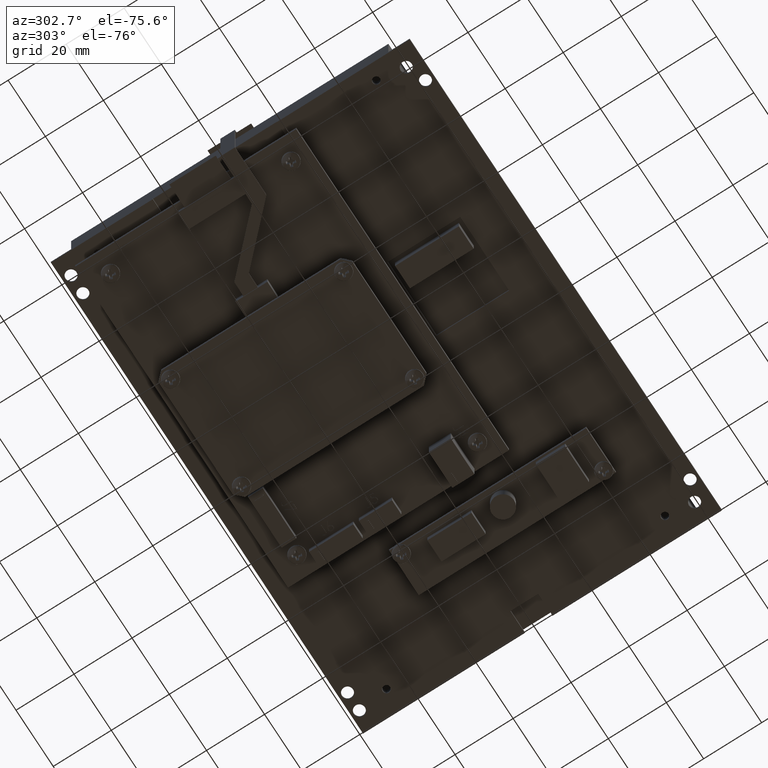
[diagram: clean part render]
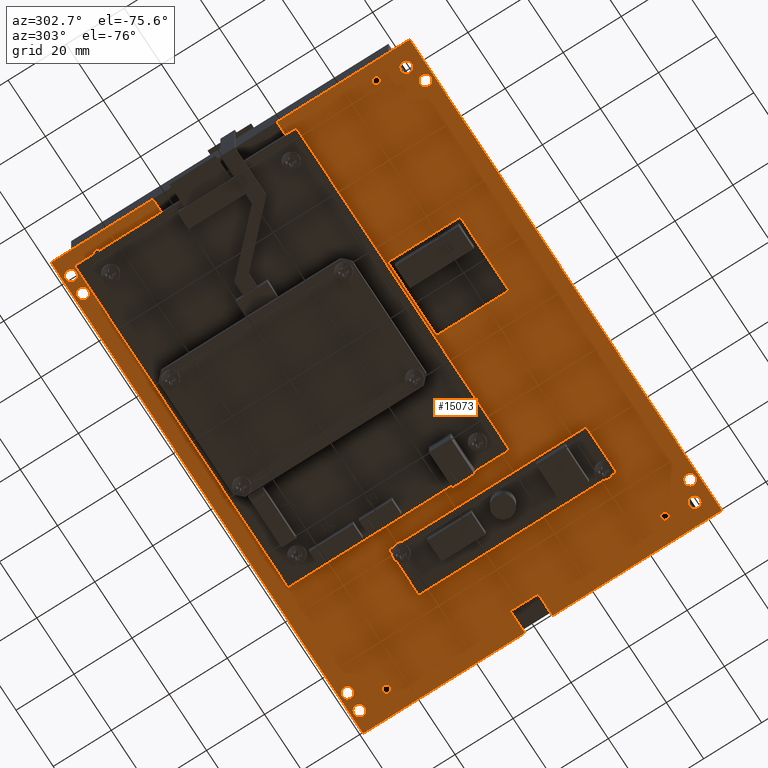
[diagram: same view with one face highlighted and labeled with its STEP entity id]
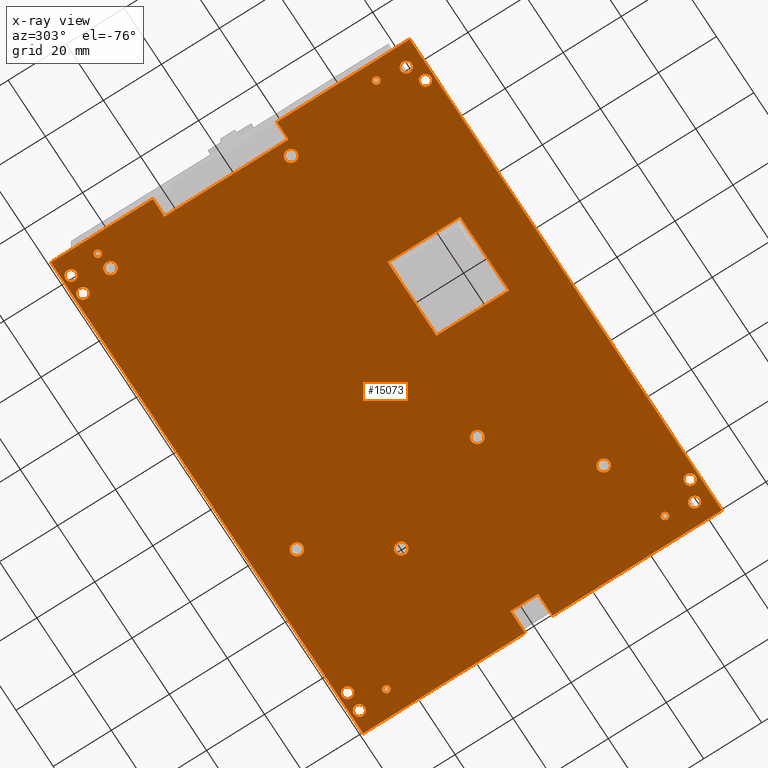
[diagram: x-ray of the same camera — body ghosted, the highlighted face saturated]
A machine part, auxiliary view. The second image highlights one B-rep face of the part: STEP entity #15073.
The next image is the same camera in x-ray: the body ghosted, the highlighted face saturated — about 0% of this face is hidden behind the body in this view.
In plain terms, the highlighted planar face has unit normal (0, 0, -1).
Its self-contained STEP definition (entity closure, byte-faithful):
#4969 = CIRCLE ( 'NONE', #5002, 0.08299999999999963000 ) ;
#5001 = CIRCLE ( 'NONE', #5007, 0.08299999999999990700 ) ;
#5002 = AXIS2_PLACEMENT_3D ( 'NONE', #7333, #7334, #7335 ) ;
#5007 = AXIS2_PLACEMENT_3D ( 'NONE', #7343, #7344, #7345 ) ;
#5008 = CIRCLE ( 'NONE', #5013, 0.08299999999999976800 ) ;
#5013 = AXIS2_PLACEMENT_3D ( 'NONE', #7355, #7356, #7357 ) ;
#5014 = CIRCLE ( 'NONE', #5019, 0.08299999999999949100 ) ;
#5019 = AXIS2_PLACEMENT_3D ( 'NONE', #7367, #7368, #7369 ) ;
#5020 = CIRCLE ( 'NONE', #5025, 0.08299999999999963000 ) ;
#5025 = AXIS2_PLACEMENT_3D ( 'NONE', #7379, #7380, #7381 ) ;
#5026 = CIRCLE ( 'NONE', #5031, 0.08299999999999963000 ) ;
#5031 = AXIS2_PLACEMENT_3D ( 'NONE', #7391, #7392, #7393 ) ;
#5032 = CIRCLE ( 'NONE', #5037, 0.07500000000000015000 ) ;
#5037 = AXIS2_PLACEMENT_3D ( 'NONE', #7403, #7404, #7405 ) ;
#5038 = CIRCLE ( 'NONE', #5043, 0.07500000000000015000 ) ;
#5043 = AXIS2_PLACEMENT_3D ( 'NONE', #7415, #7416, #7417 ) ;
#5044 = CIRCLE ( 'NONE', #5049, 0.07500000000000015000 ) ;
#5049 = AXIS2_PLACEMENT_3D ( 'NONE', #7427, #7428, #7429 ) ;
#5050 = CIRCLE ( 'NONE', #5055, 0.07500000000000015000 ) ;
#5055 = AXIS2_PLACEMENT_3D ( 'NONE', #7439, #7440, #7441 ) ;
#5056 = CIRCLE ( 'NONE', #5061, 0.07500000000000015000 ) ;
#5061 = AXIS2_PLACEMENT_3D ( 'NONE', #7451, #7452, #7453 ) ;
#5062 = CIRCLE ( 'NONE', #5067, 0.07500000000000015000 ) ;
#5067 = AXIS2_PLACEMENT_3D ( 'NONE', #7463, #7464, #7465 ) ;
#5068 = CIRCLE ( 'NONE', #5073, 0.07500000000000015000 ) ;
#5073 = AXIS2_PLACEMENT_3D ( 'NONE', #7475, #7476, #7477 ) ;
#5074 = CIRCLE ( 'NONE', #5079, 0.07500000000000015000 ) ;
#5079 = AXIS2_PLACEMENT_3D ( 'NONE', #7496, #7497, #7498 ) ;
#5080 = CIRCLE ( 'NONE', #5085, 0.04899999999999993900 ) ;
#5085 = AXIS2_PLACEMENT_3D ( 'NONE', #7511, #7512, #7513 ) ;
#5086 = CIRCLE ( 'NONE', #5091, 0.04899999999999993900 ) ;
#5091 = AXIS2_PLACEMENT_3D ( 'NONE', #7523, #7524, #7525 ) ;
#5092 = CIRCLE ( 'NONE', #5097, 0.04899999999999993900 ) ;
#5097 = AXIS2_PLACEMENT_3D ( 'NONE', #7535, #7536, #7537 ) ;
#5098 = CIRCLE ( 'NONE', #5103, 0.04899999999999993900 ) ;
#5103 = AXIS2_PLACEMENT_3D ( 'NONE', #7547, #7548, #7549 ) ;
#5108 = VECTOR ( 'NONE', #7566, 39.37007874015748100 ) ;
#5109 = VECTOR ( 'NONE', #7572, 39.37007874015748100 ) ;
#5115 = VECTOR ( 'NONE', #7584, 39.37007874015748100 ) ;
#7333 = CARTESIAN_POINT ( 'NONE',  ( 2.124999999999999100, -1.585000000000000200, 0.0000000000000000000 ) ) ;
#7334 = DIRECTION ( 'NONE',  ( 0.0000000000000000000, 0.0000000000000000000, 1.000000000000000000 ) ) ;
#7335 = DIRECTION ( 'NONE',  ( 1.000000000000000000, 0.0000000000000000000, 0.0000000000000000000 ) ) ;
#7343 = CARTESIAN_POINT ( 'NONE',  ( 1.699999999999999300, 0.8899999999999997900, 0.0000000000000000000 ) ) ;
#7344 = DIRECTION ( 'NONE',  ( 0.0000000000000000000, 0.0000000000000000000, 1.000000000000000000 ) ) ;
#7345 = DIRECTION ( 'NONE',  ( 1.000000000000000000, 0.0000000000000000000, 0.0000000000000000000 ) ) ;
#7355 = CARTESIAN_POINT ( 'NONE',  ( 1.063999999999999200, -0.5520000000000002700, 0.0000000000000000000 ) ) ;
#7356 = DIRECTION ( 'NONE',  ( 0.0000000000000000000, 0.0000000000000000000, 1.000000000000000000 ) ) ;
#7357 = DIRECTION ( 'NONE',  ( 1.000000000000000000, 0.0000000000000000000, 0.0000000000000000000 ) ) ;
#7367 = CARTESIAN_POINT ( 'NONE',  ( 1.063999999999998700, 1.897999999999999900, 0.0000000000000000000 ) ) ;
#7368 = DIRECTION ( 'NONE',  ( 0.0000000000000000000, 0.0000000000000000000, 1.000000000000000000 ) ) ;
#7369 = DIRECTION ( 'NONE',  ( 1.000000000000000000, 0.0000000000000000000, 0.0000000000000000000 ) ) ;
#7379 = CARTESIAN_POINT ( 'NONE',  ( -2.876000000000000800, -0.5520000000000002700, 0.0000000000000000000 ) ) ;
#7380 = DIRECTION ( 'NONE',  ( 0.0000000000000000000, 0.0000000000000000000, 1.000000000000000000 ) ) ;
#7381 = DIRECTION ( 'NONE',  ( 1.000000000000000000, 0.0000000000000000000, 0.0000000000000000000 ) ) ;
#7391 = CARTESIAN_POINT ( 'NONE',  ( -2.876000000000000800, 1.897999999999999900, 0.0000000000000000000 ) ) ;
#7392 = DIRECTION ( 'NONE',  ( 0.0000000000000000000, 0.0000000000000000000, 1.000000000000000000 ) ) ;
#7393 = DIRECTION ( 'NONE',  ( 1.000000000000000000, 0.0000000000000000000, 0.0000000000000000000 ) ) ;
#7403 = CARTESIAN_POINT ( 'NONE',  ( 3.049999999999998500, 2.325000000000000600, 0.0000000000000000000 ) ) ;
#7404 = DIRECTION ( 'NONE',  ( 0.0000000000000000000, 0.0000000000000000000, 1.000000000000000000 ) ) ;
#7405 = DIRECTION ( 'NONE',  ( -1.000000000000000000, 0.0000000000000000000, 0.0000000000000000000 ) ) ;
#7415 = CARTESIAN_POINT ( 'NONE',  ( 2.799999999999998000, 2.325000000000000600, 0.0000000000000000000 ) ) ;
#7416 = DIRECTION ( 'NONE',  ( 0.0000000000000000000, 0.0000000000000000000, 1.000000000000000000 ) ) ;
#7417 = DIRECTION ( 'NONE',  ( -1.000000000000000000, 0.0000000000000000000, 0.0000000000000000000 ) ) ;
#7427 = CARTESIAN_POINT ( 'NONE',  ( 3.049999999999998900, -2.224999999999999200, 0.0000000000000000000 ) ) ;
#7428 = DIRECTION ( 'NONE',  ( 0.0000000000000000000, 0.0000000000000000000, 1.000000000000000000 ) ) ;
#7429 = DIRECTION ( 'NONE',  ( -1.000000000000000000, 0.0000000000000000000, 0.0000000000000000000 ) ) ;
#7439 = CARTESIAN_POINT ( 'NONE',  ( 2.799999999999998900, -2.324999999999999300, 0.0000000000000000000 ) ) ;
#7440 = DIRECTION ( 'NONE',  ( 0.0000000000000000000, 0.0000000000000000000, 1.000000000000000000 ) ) ;
#7441 = DIRECTION ( 'NONE',  ( -1.000000000000000000, 0.0000000000000000000, 0.0000000000000000000 ) ) ;
#7451 = CARTESIAN_POINT ( 'NONE',  ( -2.795000000000000800, -2.325000000000000600, 0.0000000000000000000 ) ) ;
#7452 = DIRECTION ( 'NONE',  ( 0.0000000000000000000, 0.0000000000000000000, 1.000000000000000000 ) ) ;
#7453 = DIRECTION ( 'NONE',  ( 1.000000000000000000, 0.0000000000000000000, 0.0000000000000000000 ) ) ;
#7463 = CARTESIAN_POINT ( 'NONE',  ( -3.045000000000000400, -2.225000000000000500, 0.0000000000000000000 ) ) ;
#7464 = DIRECTION ( 'NONE',  ( 0.0000000000000000000, 0.0000000000000000000, 1.000000000000000000 ) ) ;
#7465 = DIRECTION ( 'NONE',  ( 1.000000000000000000, 0.0000000000000000000, 0.0000000000000000000 ) ) ;
#7475 = CARTESIAN_POINT ( 'NONE',  ( -2.795000000000000800, 2.324999999999999700, 0.0000000000000000000 ) ) ;
#7476 = DIRECTION ( 'NONE',  ( 0.0000000000000000000, 0.0000000000000000000, 1.000000000000000000 ) ) ;
#7477 = DIRECTION ( 'NONE',  ( 1.000000000000000000, 0.0000000000000000000, 0.0000000000000000000 ) ) ;
#7496 = CARTESIAN_POINT ( 'NONE',  ( -3.045000000000000800, 2.324999999999999700, 0.0000000000000000000 ) ) ;
#7497 = DIRECTION ( 'NONE',  ( 0.0000000000000000000, 0.0000000000000000000, 1.000000000000000000 ) ) ;
#7498 = DIRECTION ( 'NONE',  ( 1.000000000000000000, 0.0000000000000000000, 0.0000000000000000000 ) ) ;
#7511 = CARTESIAN_POINT ( 'NONE',  ( 3.004000000000000000, -1.852000000000000300, 0.0000000000000000000 ) ) ;
#7512 = DIRECTION ( 'NONE',  ( 0.0000000000000000000, 0.0000000000000000000, 1.000000000000000000 ) ) ;
#7513 = DIRECTION ( 'NONE',  ( 1.000000000000000000, 0.0000000000000000000, 0.0000000000000000000 ) ) ;
#7523 = CARTESIAN_POINT ( 'NONE',  ( -3.098000000000000800, -1.852000000000001000, 0.0000000000000000000 ) ) ;
#7524 = DIRECTION ( 'NONE',  ( 0.0000000000000000000, 0.0000000000000000000, 1.000000000000000000 ) ) ;
#7525 = DIRECTION ( 'NONE',  ( 1.000000000000000000, 0.0000000000000000000, 0.0000000000000000000 ) ) ;
#7535 = CARTESIAN_POINT ( 'NONE',  ( 3.003999999999999600, 1.928000000000000400, 0.0000000000000000000 ) ) ;
#7536 = DIRECTION ( 'NONE',  ( 0.0000000000000000000, 0.0000000000000000000, 1.000000000000000000 ) ) ;
#7537 = DIRECTION ( 'NONE',  ( 1.000000000000000000, 0.0000000000000000000, 0.0000000000000000000 ) ) ;
#7547 = CARTESIAN_POINT ( 'NONE',  ( -3.098000000000000800, 1.928000000000000400, 0.0000000000000000000 ) ) ;
#7548 = DIRECTION ( 'NONE',  ( 0.0000000000000000000, 0.0000000000000000000, 1.000000000000000000 ) ) ;
#7549 = DIRECTION ( 'NONE',  ( 1.000000000000000000, 0.0000000000000000000, 0.0000000000000000000 ) ) ;
#7557 = LINE ( 'NONE', #7565, #5108 ) ;
#7560 = LINE ( 'NONE', #7571, #5109 ) ;
#7565 = CARTESIAN_POINT ( 'NONE',  ( 3.299999999999998500, -2.435000000000000100, 0.0000000000000000000 ) ) ;
#7566 = DIRECTION ( 'NONE',  ( 0.0000000000000000000, 1.000000000000000000, 0.0000000000000000000 ) ) ;
#7571 = CARTESIAN_POINT ( 'NONE',  ( -3.300000000000000700, -2.435000000000000100, 0.0000000000000000000 ) ) ;
#7572 = DIRECTION ( 'NONE',  ( -0.0000000000000000000, -1.000000000000000000, -0.0000000000000000000 ) ) ;
#7581 = LINE ( 'NONE', #7583, #5115 ) ;
#7583 = CARTESIAN_POINT ( 'NONE',  ( 3.299999999999998500, -2.435000000000000100, 0.0000000000000000000 ) ) ;
#7584 = DIRECTION ( 'NONE',  ( 0.0000000000000000000, 1.000000000000000000, 0.0000000000000000000 ) ) ;
#7728 = FACE_BOUND ( 'NONE', #15200, .T. ) ;
#7731 = FACE_BOUND ( 'NONE', #15196, .T. ) ;
#7735 = FACE_BOUND ( 'NONE', #15195, .T. ) ;
#7736 = FACE_OUTER_BOUND ( 'NONE', #15192, .T. ) ;
#7737 = FACE_BOUND ( 'NONE', #15198, .T. ) ;
#7738 = FACE_BOUND ( 'NONE', #15191, .T. ) ;
#7740 = FACE_BOUND ( 'NONE', #15194, .T. ) ;
#7741 = FACE_BOUND ( 'NONE', #15197, .T. ) ;
#7742 = FACE_BOUND ( 'NONE', #15193, .T. ) ;
#7743 = FACE_BOUND ( 'NONE', #15199, .T. ) ;
#7744 = FACE_BOUND ( 'NONE', #15201, .T. ) ;
#7745 = FACE_BOUND ( 'NONE', #15202, .T. ) ;
#7746 = FACE_BOUND ( 'NONE', #15203, .T. ) ;
#7747 = FACE_BOUND ( 'NONE', #15204, .T. ) ;
#7748 = FACE_BOUND ( 'NONE', #15922, .T. ) ;
#7749 = FACE_BOUND ( 'NONE', #13414, .T. ) ;
#7750 = FACE_BOUND ( 'NONE', #15924, .T. ) ;
#7751 = FACE_BOUND ( 'NONE', #15926, .T. ) ;
#7752 = FACE_BOUND ( 'NONE', #15921, .T. ) ;
#7754 = FACE_BOUND ( 'NONE', #15923, .T. ) ;
#7756 = CARTESIAN_POINT ( 'NONE',  ( 3.299999999999998500, 2.435000000000000100, 0.0000000000000000000 ) ) ;
#7758 = PLANE ( 'NONE',  #8723 ) ;
#7759 = DIRECTION ( 'NONE',  ( 0.0000000000000000000, 0.0000000000000000000, -1.000000000000000000 ) ) ;
#7760 = DIRECTION ( 'NONE',  ( -1.000000000000000000, 0.0000000000000000000, -0.0000000000000000000 ) ) ;
#7912 = LINE ( 'NONE', #7935, #8759 ) ;
#7922 = LINE ( 'NONE', #7923, #8752 ) ;
#7923 = CARTESIAN_POINT ( 'NONE',  ( -3.300000000000000700, 2.435000000000000100, 0.0000000000000000000 ) ) ;
#7924 = DIRECTION ( 'NONE',  ( -1.000000000000000000, -0.0000000000000000000, -0.0000000000000000000 ) ) ;
#7932 = LINE ( 'NONE', #7941, #8758 ) ;
#7935 = CARTESIAN_POINT ( 'NONE',  ( -3.300000000000000700, -2.435000000000000100, 0.0000000000000000000 ) ) ;
#7937 = DIRECTION ( 'NONE',  ( -0.0000000000000000000, -1.000000000000000000, -0.0000000000000000000 ) ) ;
#7941 = CARTESIAN_POINT ( 'NONE',  ( -3.300000000000000700, -2.435000000000000100, 0.0000000000000000000 ) ) ;
#7942 = DIRECTION ( 'NONE',  ( 1.000000000000000000, 0.0000000000000000000, 0.0000000000000000000 ) ) ;
#8022 = LINE ( 'NONE', #8034, #8806 ) ;
#8026 = LINE ( 'NONE', #8039, #8808 ) ;
#8031 = LINE ( 'NONE', #8055, #8810 ) ;
#8034 = CARTESIAN_POINT ( 'NONE',  ( 3.299999999999998500, 0.2379999999999997700, 0.0000000000000000000 ) ) ;
#8035 = DIRECTION ( 'NONE',  ( 1.000000000000000000, 0.0000000000000000000, 0.0000000000000000000 ) ) ;
#8036 = LINE ( 'NONE', #8037, #8809 ) ;
#8037 = CARTESIAN_POINT ( 'NONE',  ( 2.993999999999999800, 0.2379999999999997700, 0.0000000000000000000 ) ) ;
#8038 = DIRECTION ( 'NONE',  ( 0.0000000000000000000, -1.000000000000000000, 0.0000000000000000000 ) ) ;
#8039 = CARTESIAN_POINT ( 'NONE',  ( 2.993999999999999800, -0.1370000000000004800, 0.0000000000000000000 ) ) ;
#8040 = DIRECTION ( 'NONE',  ( 1.000000000000000000, 0.0000000000000000000, 0.0000000000000000000 ) ) ;
#8041 = LINE ( 'NONE', #8042, #8811 ) ;
#8042 = CARTESIAN_POINT ( 'NONE',  ( -3.300000000000000300, -0.6320000000000005600, 0.0000000000000000000 ) ) ;
#8043 = DIRECTION ( 'NONE',  ( 1.000000000000000000, 0.0000000000000000000, 0.0000000000000000000 ) ) ;
#8044 = LINE ( 'NONE', #8046, #8812 ) ;
#8046 = CARTESIAN_POINT ( 'NONE',  ( -3.055000000000001000, 1.051999999999999800, 0.0000000000000000000 ) ) ;
#8047 = DIRECTION ( 'NONE',  ( -0.0000000000000000000, 1.000000000000000000, -0.0000000000000000000 ) ) ;
#8048 = LINE ( 'NONE', #8049, #8813 ) ;
#8049 = CARTESIAN_POINT ( 'NONE',  ( -3.300000000000000300, 1.051999999999999800, 0.0000000000000000000 ) ) ;
#8050 = DIRECTION ( 'NONE',  ( -1.000000000000000000, -0.0000000000000000000, -0.0000000000000000000 ) ) ;
#8051 = LINE ( 'NONE', #8053, #8814 ) ;
#8053 = CARTESIAN_POINT ( 'NONE',  ( -1.226000000000000400, -0.8050000000000006000, 0.0000000000000000000 ) ) ;
#8054 = DIRECTION ( 'NONE',  ( 1.388134143122085000E-016, -1.000000000000000000, 0.0000000000000000000 ) ) ;
#8055 = CARTESIAN_POINT ( 'NONE',  ( -1.226000000000000400, -1.789000000000000600, 0.0000000000000000000 ) ) ;
#8057 = DIRECTION ( 'NONE',  ( 1.000000000000000000, 0.0000000000000000000, 0.0000000000000000000 ) ) ;
#8058 = LINE ( 'NONE', #8059, #8816 ) ;
#8059 = CARTESIAN_POINT ( 'NONE',  ( -0.1960000000000003100, -0.8050000000000006000, 0.0000000000000000000 ) ) ;
#8060 = DIRECTION ( 'NONE',  ( -1.388134143122085000E-016, 1.000000000000000000, -0.0000000000000000000 ) ) ;
#8061 = LINE ( 'NONE', #8062, #8817 ) ;
#8062 = CARTESIAN_POINT ( 'NONE',  ( -1.226000000000000400, -0.8050000000000006000, 0.0000000000000000000 ) ) ;
#8063 = DIRECTION ( 'NONE',  ( -1.000000000000000000, -0.0000000000000000000, -0.0000000000000000000 ) ) ;
#8064 = CARTESIAN_POINT ( 'NONE',  ( 2.124999999999999100, -1.585000000000000200, 0.0000000000000000000 ) ) ;
#8066 = DIRECTION ( 'NONE',  ( 0.0000000000000000000, 0.0000000000000000000, 1.000000000000000000 ) ) ;
#8067 = DIRECTION ( 'NONE',  ( 1.000000000000000000, 0.0000000000000000000, 0.0000000000000000000 ) ) ;
#8070 = CARTESIAN_POINT ( 'NONE',  ( 1.699999999999999300, 0.8899999999999997900, 0.0000000000000000000 ) ) ;
#8071 = DIRECTION ( 'NONE',  ( 0.0000000000000000000, 0.0000000000000000000, 1.000000000000000000 ) ) ;
#8073 = DIRECTION ( 'NONE',  ( 1.000000000000000000, 0.0000000000000000000, 0.0000000000000000000 ) ) ;
#8075 = CARTESIAN_POINT ( 'NONE',  ( 1.063999999999999200, -0.5520000000000002700, 0.0000000000000000000 ) ) ;
#8077 = DIRECTION ( 'NONE',  ( 0.0000000000000000000, 0.0000000000000000000, 1.000000000000000000 ) ) ;
#8079 = DIRECTION ( 'NONE',  ( 1.000000000000000000, 0.0000000000000000000, 0.0000000000000000000 ) ) ;
#8080 = CARTESIAN_POINT ( 'NONE',  ( 1.063999999999998700, 1.897999999999999900, 0.0000000000000000000 ) ) ;
#8081 = DIRECTION ( 'NONE',  ( 0.0000000000000000000, 0.0000000000000000000, 1.000000000000000000 ) ) ;
#8082 = DIRECTION ( 'NONE',  ( 1.000000000000000000, 0.0000000000000000000, 0.0000000000000000000 ) ) ;
#8083 = CARTESIAN_POINT ( 'NONE',  ( -2.876000000000000800, -0.5520000000000002700, 0.0000000000000000000 ) ) ;
#8084 = DIRECTION ( 'NONE',  ( 0.0000000000000000000, 0.0000000000000000000, 1.000000000000000000 ) ) ;
#8085 = DIRECTION ( 'NONE',  ( 1.000000000000000000, 0.0000000000000000000, 0.0000000000000000000 ) ) ;
#8087 = CARTESIAN_POINT ( 'NONE',  ( -2.876000000000000800, 1.897999999999999900, 0.0000000000000000000 ) ) ;
#8088 = DIRECTION ( 'NONE',  ( 0.0000000000000000000, 0.0000000000000000000, 1.000000000000000000 ) ) ;
#8090 = DIRECTION ( 'NONE',  ( 1.000000000000000000, 0.0000000000000000000, 0.0000000000000000000 ) ) ;
#8091 = CARTESIAN_POINT ( 'NONE',  ( 3.049999999999998500, 2.325000000000000600, 0.0000000000000000000 ) ) ;
#8092 = DIRECTION ( 'NONE',  ( 0.0000000000000000000, 0.0000000000000000000, 1.000000000000000000 ) ) ;
#8093 = DIRECTION ( 'NONE',  ( -1.000000000000000000, 0.0000000000000000000, 0.0000000000000000000 ) ) ;
#8094 = CARTESIAN_POINT ( 'NONE',  ( 2.799999999999998000, 2.325000000000000600, 0.0000000000000000000 ) ) ;
#8095 = DIRECTION ( 'NONE',  ( 0.0000000000000000000, 0.0000000000000000000, 1.000000000000000000 ) ) ;
#8096 = DIRECTION ( 'NONE',  ( -1.000000000000000000, 0.0000000000000000000, 0.0000000000000000000 ) ) ;
#8097 = CARTESIAN_POINT ( 'NONE',  ( 3.049999999999998900, -2.224999999999999200, 0.0000000000000000000 ) ) ;
#8098 = DIRECTION ( 'NONE',  ( 0.0000000000000000000, 0.0000000000000000000, 1.000000000000000000 ) ) ;
#8099 = DIRECTION ( 'NONE',  ( -1.000000000000000000, 0.0000000000000000000, 0.0000000000000000000 ) ) ;
#8101 = CARTESIAN_POINT ( 'NONE',  ( 2.799999999999998900, -2.324999999999999300, 0.0000000000000000000 ) ) ;
#8102 = DIRECTION ( 'NONE',  ( 0.0000000000000000000, 0.0000000000000000000, 1.000000000000000000 ) ) ;
#8104 = DIRECTION ( 'NONE',  ( -1.000000000000000000, 0.0000000000000000000, 0.0000000000000000000 ) ) ;
#8106 = CARTESIAN_POINT ( 'NONE',  ( -2.795000000000000800, -2.325000000000000600, 0.0000000000000000000 ) ) ;
#8108 = DIRECTION ( 'NONE',  ( 0.0000000000000000000, 0.0000000000000000000, 1.000000000000000000 ) ) ;
#8109 = DIRECTION ( 'NONE',  ( 1.000000000000000000, 0.0000000000000000000, 0.0000000000000000000 ) ) ;
#8110 = CARTESIAN_POINT ( 'NONE',  ( -3.045000000000000400, -2.225000000000000500, 0.0000000000000000000 ) ) ;
#8111 = DIRECTION ( 'NONE',  ( 0.0000000000000000000, 0.0000000000000000000, 1.000000000000000000 ) ) ;
#8112 = DIRECTION ( 'NONE',  ( 1.000000000000000000, 0.0000000000000000000, 0.0000000000000000000 ) ) ;
#8113 = CARTESIAN_POINT ( 'NONE',  ( -2.795000000000000800, 2.324999999999999700, 0.0000000000000000000 ) ) ;
#8114 = DIRECTION ( 'NONE',  ( 0.0000000000000000000, 0.0000000000000000000, 1.000000000000000000 ) ) ;
#8115 = DIRECTION ( 'NONE',  ( 1.000000000000000000, 0.0000000000000000000, 0.0000000000000000000 ) ) ;
#8116 = CARTESIAN_POINT ( 'NONE',  ( -3.045000000000000800, 2.324999999999999700, 0.0000000000000000000 ) ) ;
#8117 = DIRECTION ( 'NONE',  ( 0.0000000000000000000, 0.0000000000000000000, 1.000000000000000000 ) ) ;
#8118 = DIRECTION ( 'NONE',  ( 1.000000000000000000, 0.0000000000000000000, 0.0000000000000000000 ) ) ;
#8119 = CARTESIAN_POINT ( 'NONE',  ( 3.004000000000000000, -1.852000000000000300, 0.0000000000000000000 ) ) ;
#8120 = DIRECTION ( 'NONE',  ( 0.0000000000000000000, 0.0000000000000000000, 1.000000000000000000 ) ) ;
#8121 = DIRECTION ( 'NONE',  ( 1.000000000000000000, 0.0000000000000000000, 0.0000000000000000000 ) ) ;
#8123 = CARTESIAN_POINT ( 'NONE',  ( -3.098000000000000800, -1.852000000000001000, 0.0000000000000000000 ) ) ;
#8124 = DIRECTION ( 'NONE',  ( 0.0000000000000000000, 0.0000000000000000000, 1.000000000000000000 ) ) ;
#8125 = DIRECTION ( 'NONE',  ( 1.000000000000000000, 0.0000000000000000000, 0.0000000000000000000 ) ) ;
#8128 = CARTESIAN_POINT ( 'NONE',  ( 3.003999999999999600, 1.928000000000000400, 0.0000000000000000000 ) ) ;
#8129 = DIRECTION ( 'NONE',  ( 0.0000000000000000000, 0.0000000000000000000, 1.000000000000000000 ) ) ;
#8130 = DIRECTION ( 'NONE',  ( 1.000000000000000000, 0.0000000000000000000, 0.0000000000000000000 ) ) ;
#8133 = CARTESIAN_POINT ( 'NONE',  ( -3.098000000000000800, 1.928000000000000400, 0.0000000000000000000 ) ) ;
#8134 = DIRECTION ( 'NONE',  ( 0.0000000000000000000, 0.0000000000000000000, 1.000000000000000000 ) ) ;
#8135 = DIRECTION ( 'NONE',  ( 1.000000000000000000, 0.0000000000000000000, 0.0000000000000000000 ) ) ;
#8304 = CARTESIAN_POINT ( 'NONE',  ( 2.041999999999999800, -1.585000000000000200, 0.0000000000000000000 ) ) ;
#8305 = CARTESIAN_POINT ( 'NONE',  ( 2.207999999999998900, -1.585000000000000200, 0.0000000000000000000 ) ) ;
#8308 = CARTESIAN_POINT ( 'NONE',  ( 1.616999999999999500, 0.8899999999999997900, 0.0000000000000000000 ) ) ;
#8310 = CARTESIAN_POINT ( 'NONE',  ( 1.782999999999999300, 0.8899999999999997900, 0.0000000000000000000 ) ) ;
#8313 = CARTESIAN_POINT ( 'NONE',  ( 0.9809999999999993200, -0.5520000000000002700, 0.0000000000000000000 ) ) ;
#8314 = CARTESIAN_POINT ( 'NONE',  ( 1.146999999999998900, -0.5520000000000002700, 0.0000000000000000000 ) ) ;
#8317 = CARTESIAN_POINT ( 'NONE',  ( 0.9809999999999992100, 1.897999999999999900, 0.0000000000000000000 ) ) ;
#8318 = CARTESIAN_POINT ( 'NONE',  ( 1.146999999999998200, 1.897999999999999900, 0.0000000000000000000 ) ) ;
#8321 = CARTESIAN_POINT ( 'NONE',  ( -2.959000000000000500, -0.5520000000000002700, 0.0000000000000000000 ) ) ;
#8322 = CARTESIAN_POINT ( 'NONE',  ( -2.793000000000001000, -0.5520000000000002700, 0.0000000000000000000 ) ) ;
#8325 = CARTESIAN_POINT ( 'NONE',  ( -2.959000000000000500, 1.897999999999999900, 0.0000000000000000000 ) ) ;
#8326 = CARTESIAN_POINT ( 'NONE',  ( -2.793000000000001000, 1.897999999999999900, 0.0000000000000000000 ) ) ;
#8329 = CARTESIAN_POINT ( 'NONE',  ( 2.974999999999998300, 2.325000000000000600, 0.0000000000000000000 ) ) ;
#8330 = CARTESIAN_POINT ( 'NONE',  ( 3.124999999999998700, 2.325000000000000600, 0.0000000000000000000 ) ) ;
#8333 = CARTESIAN_POINT ( 'NONE',  ( 2.724999999999997900, 2.325000000000000600, 0.0000000000000000000 ) ) ;
#8334 = CARTESIAN_POINT ( 'NONE',  ( 2.874999999999998200, 2.325000000000000600, 0.0000000000000000000 ) ) ;
#8337 = CARTESIAN_POINT ( 'NONE',  ( 2.974999999999998800, -2.224999999999999200, 0.0000000000000000000 ) ) ;
#8338 = CARTESIAN_POINT ( 'NONE',  ( 3.124999999999999100, -2.224999999999999200, 0.0000000000000000000 ) ) ;
#8341 = CARTESIAN_POINT ( 'NONE',  ( 2.724999999999998800, -2.324999999999999300, 0.0000000000000000000 ) ) ;
#8342 = CARTESIAN_POINT ( 'NONE',  ( 2.874999999999999100, -2.324999999999999300, 0.0000000000000000000 ) ) ;
#8345 = CARTESIAN_POINT ( 'NONE',  ( -2.870000000000001000, -2.325000000000000600, 0.0000000000000000000 ) ) ;
#8346 = CARTESIAN_POINT ( 'NONE',  ( -2.720000000000000600, -2.325000000000000600, 0.0000000000000000000 ) ) ;
#8349 = CARTESIAN_POINT ( 'NONE',  ( -3.120000000000000600, -2.225000000000000500, 0.0000000000000000000 ) ) ;
#8350 = CARTESIAN_POINT ( 'NONE',  ( -2.970000000000000200, -2.225000000000000500, 0.0000000000000000000 ) ) ;
#8353 = CARTESIAN_POINT ( 'NONE',  ( -2.870000000000001000, 2.324999999999999700, 0.0000000000000000000 ) ) ;
#8354 = CARTESIAN_POINT ( 'NONE',  ( -2.720000000000000600, 2.324999999999999700, 0.0000000000000000000 ) ) ;
#8357 = CARTESIAN_POINT ( 'NONE',  ( -3.120000000000001000, 2.324999999999999700, 0.0000000000000000000 ) ) ;
#8358 = CARTESIAN_POINT ( 'NONE',  ( -2.970000000000000600, 2.324999999999999700, 0.0000000000000000000 ) ) ;
#8361 = CARTESIAN_POINT ( 'NONE',  ( 2.955000000000000100, -1.852000000000000300, 0.0000000000000000000 ) ) ;
#8362 = CARTESIAN_POINT ( 'NONE',  ( 3.052999999999999900, -1.852000000000000300, 0.0000000000000000000 ) ) ;
#8365 = CARTESIAN_POINT ( 'NONE',  ( -3.147000000000000700, -1.852000000000001000, 0.0000000000000000000 ) ) ;
#8366 = CARTESIAN_POINT ( 'NONE',  ( -3.049000000000000800, -1.852000000000001000, 0.0000000000000000000 ) ) ;
#8369 = CARTESIAN_POINT ( 'NONE',  ( 2.954999999999999600, 1.928000000000000400, 0.0000000000000000000 ) ) ;
#8370 = CARTESIAN_POINT ( 'NONE',  ( 3.052999999999999500, 1.928000000000000400, 0.0000000000000000000 ) ) ;
#8373 = CARTESIAN_POINT ( 'NONE',  ( -3.147000000000000700, 1.928000000000000400, 0.0000000000000000000 ) ) ;
#8374 = CARTESIAN_POINT ( 'NONE',  ( -3.049000000000000800, 1.928000000000000400, 0.0000000000000000000 ) ) ;
#8381 = CARTESIAN_POINT ( 'NONE',  ( -3.300000000000000700, 2.435000000000000100, 0.0000000000000000000 ) ) ;
#8382 = CARTESIAN_POINT ( 'NONE',  ( -3.300000000000000300, 1.051999999999999800, 0.0000000000000000000 ) ) ;
#8383 = CARTESIAN_POINT ( 'NONE',  ( 3.299999999999998500, 0.2379999999999997700, 0.0000000000000000000 ) ) ;
#8384 = CARTESIAN_POINT ( 'NONE',  ( 3.299999999999998500, 2.435000000000000100, 0.0000000000000000000 ) ) ;
#8385 = CARTESIAN_POINT ( 'NONE',  ( 3.299999999999998500, -2.435000000000000100, 0.0000000000000000000 ) ) ;
#8388 = CARTESIAN_POINT ( 'NONE',  ( 3.299999999999998500, -0.1370000000000004800, 0.0000000000000000000 ) ) ;
#8393 = CARTESIAN_POINT ( 'NONE',  ( -3.300000000000000300, -0.6320000000000005600, 0.0000000000000000000 ) ) ;
#8396 = CARTESIAN_POINT ( 'NONE',  ( -3.300000000000000700, -2.435000000000000100, 0.0000000000000000000 ) ) ;
#8399 = CARTESIAN_POINT ( 'NONE',  ( 2.993999999999999800, 0.2379999999999997700, 0.0000000000000000000 ) ) ;
#8400 = CARTESIAN_POINT ( 'NONE',  ( -1.226000000000000400, -0.8050000000000006000, 0.0000000000000000000 ) ) ;
#8403 = CARTESIAN_POINT ( 'NONE',  ( 2.993999999999999800, -0.1370000000000004800, 0.0000000000000000000 ) ) ;
#8404 = CARTESIAN_POINT ( 'NONE',  ( -3.055000000000001500, -0.6320000000000005600, 0.0000000000000000000 ) ) ;
#8405 = CARTESIAN_POINT ( 'NONE',  ( -3.055000000000001000, 1.051999999999999800, 0.0000000000000000000 ) ) ;
#8406 = CARTESIAN_POINT ( 'NONE',  ( -1.226000000000000400, -1.789000000000000600, 0.0000000000000000000 ) ) ;
#8407 = CARTESIAN_POINT ( 'NONE',  ( -0.1960000000000003100, -1.789000000000000600, 0.0000000000000000000 ) ) ;
#8408 = CARTESIAN_POINT ( 'NONE',  ( -0.1960000000000003100, -0.8050000000000006000, 0.0000000000000000000 ) ) ;
#8723 = AXIS2_PLACEMENT_3D ( 'NONE', #7756, #7759, #7760 ) ;
#8752 = VECTOR ( 'NONE', #7924, 39.37007874015748100 ) ;
#8758 = VECTOR ( 'NONE', #7942, 39.37007874015748100 ) ;
#8759 = VECTOR ( 'NONE', #7937, 39.37007874015748100 ) ;
#8806 = VECTOR ( 'NONE', #8035, 39.37007874015748100 ) ;
#8808 = VECTOR ( 'NONE', #8040, 39.37007874015748100 ) ;
#8809 = VECTOR ( 'NONE', #8038, 39.37007874015748100 ) ;
#8810 = VECTOR ( 'NONE', #8057, 39.37007874015748100 ) ;
#8811 = VECTOR ( 'NONE', #8043, 39.37007874015748100 ) ;
#8812 = VECTOR ( 'NONE', #8047, 39.37007874015748100 ) ;
#8813 = VECTOR ( 'NONE', #8050, 39.37007874015748100 ) ;
#8814 = VECTOR ( 'NONE', #8054, 39.37007874015748100 ) ;
#8816 = VECTOR ( 'NONE', #8060, 39.37007874015748100 ) ;
#8817 = VECTOR ( 'NONE', #8063, 39.37007874015748100 ) ;
#8818 = CIRCLE ( 'NONE', #8820, 0.08299999999999963000 ) ;
#8819 = CIRCLE ( 'NONE', #8822, 0.08299999999999990700 ) ;
#8820 = AXIS2_PLACEMENT_3D ( 'NONE', #8064, #8066, #8067 ) ;
#8821 = CIRCLE ( 'NONE', #8824, 0.08299999999999976800 ) ;
#8822 = AXIS2_PLACEMENT_3D ( 'NONE', #8070, #8071, #8073 ) ;
#8823 = CIRCLE ( 'NONE', #8826, 0.08299999999999949100 ) ;
#8824 = AXIS2_PLACEMENT_3D ( 'NONE', #8075, #8077, #8079 ) ;
#8825 = CIRCLE ( 'NONE', #8828, 0.08299999999999963000 ) ;
#8826 = AXIS2_PLACEMENT_3D ( 'NONE', #8080, #8081, #8082 ) ;
#8827 = CIRCLE ( 'NONE', #8830, 0.08299999999999963000 ) ;
#8828 = AXIS2_PLACEMENT_3D ( 'NONE', #8083, #8084, #8085 ) ;
#8829 = CIRCLE ( 'NONE', #8832, 0.07500000000000015000 ) ;
#8830 = AXIS2_PLACEMENT_3D ( 'NONE', #8087, #8088, #8090 ) ;
#8831 = CIRCLE ( 'NONE', #8834, 0.07500000000000015000 ) ;
#8832 = AXIS2_PLACEMENT_3D ( 'NONE', #8091, #8092, #8093 ) ;
#8833 = CIRCLE ( 'NONE', #8836, 0.07500000000000015000 ) ;
#8834 = AXIS2_PLACEMENT_3D ( 'NONE', #8094, #8095, #8096 ) ;
#8835 = CIRCLE ( 'NONE', #8838, 0.07500000000000015000 ) ;
#8836 = AXIS2_PLACEMENT_3D ( 'NONE', #8097, #8098, #8099 ) ;
#8837 = CIRCLE ( 'NONE', #8840, 0.07500000000000015000 ) ;
#8838 = AXIS2_PLACEMENT_3D ( 'NONE', #8101, #8102, #8104 ) ;
#8839 = CIRCLE ( 'NONE', #8842, 0.07500000000000015000 ) ;
#8840 = AXIS2_PLACEMENT_3D ( 'NONE', #8106, #8108, #8109 ) ;
#8841 = CIRCLE ( 'NONE', #8844, 0.07500000000000015000 ) ;
#8842 = AXIS2_PLACEMENT_3D ( 'NONE', #8110, #8111, #8112 ) ;
#8843 = CIRCLE ( 'NONE', #8846, 0.07500000000000015000 ) ;
#8844 = AXIS2_PLACEMENT_3D ( 'NONE', #8113, #8114, #8115 ) ;
#8845 = CIRCLE ( 'NONE', #8848, 0.04899999999999993900 ) ;
#8846 = AXIS2_PLACEMENT_3D ( 'NONE', #8116, #8117, #8118 ) ;
#8847 = CIRCLE ( 'NONE', #8850, 0.04899999999999993900 ) ;
#8848 = AXIS2_PLACEMENT_3D ( 'NONE', #8119, #8120, #8121 ) ;
#8849 = CIRCLE ( 'NONE', #8852, 0.04899999999999993900 ) ;
#8850 = AXIS2_PLACEMENT_3D ( 'NONE', #8123, #8124, #8125 ) ;
#8851 = CIRCLE ( 'NONE', #8854, 0.04899999999999993900 ) ;
#8852 = AXIS2_PLACEMENT_3D ( 'NONE', #8128, #8129, #8130 ) ;
#8854 = AXIS2_PLACEMENT_3D ( 'NONE', #8133, #8134, #8135 ) ;
#13414 = EDGE_LOOP ( 'NONE', ( #15799, #15800 ) ) ;
#14972 = EDGE_CURVE ( 'NONE', #15285, #15286, #4969, .T. ) ;
#14975 = EDGE_CURVE ( 'NONE', #15289, #15291, #5001, .T. ) ;
#14979 = EDGE_CURVE ( 'NONE', #15294, #15295, #5008, .T. ) ;
#14983 = EDGE_CURVE ( 'NONE', #15298, #15299, #5014, .T. ) ;
#14987 = EDGE_CURVE ( 'NONE', #15302, #15303, #5020, .T. ) ;
#14991 = EDGE_CURVE ( 'NONE', #15306, #15307, #5026, .T. ) ;
#14995 = EDGE_CURVE ( 'NONE', #15310, #15311, #5032, .T. ) ;
#14999 = EDGE_CURVE ( 'NONE', #15314, #15315, #5038, .T. ) ;
#15003 = EDGE_CURVE ( 'NONE', #15318, #15319, #5044, .T. ) ;
#15007 = EDGE_CURVE ( 'NONE', #15322, #15323, #5050, .T. ) ;
#15011 = EDGE_CURVE ( 'NONE', #15326, #15327, #5056, .T. ) ;
#15015 = EDGE_CURVE ( 'NONE', #15330, #15331, #5062, .T. ) ;
#15019 = EDGE_CURVE ( 'NONE', #15334, #15335, #5068, .T. ) ;
#15023 = EDGE_CURVE ( 'NONE', #15338, #15339, #5074, .T. ) ;
#15027 = EDGE_CURVE ( 'NONE', #15342, #15343, #5080, .T. ) ;
#15031 = EDGE_CURVE ( 'NONE', #15346, #15347, #5086, .T. ) ;
#15035 = EDGE_CURVE ( 'NONE', #15350, #15351, #5092, .T. ) ;
#15039 = EDGE_CURVE ( 'NONE', #15354, #15355, #5098, .T. ) ;
#15045 = EDGE_CURVE ( 'NONE', #15364, #15365, #7557, .T. ) ;
#15047 = EDGE_CURVE ( 'NONE', #15362, #15363, #7560, .T. ) ;
#15051 = EDGE_CURVE ( 'NONE', #15366, #15369, #7581, .T. ) ;
#15073 = ADVANCED_FACE ( 'NONE', ( #7736, #7731, #7740, #7742, #7735, #7737, #7738, #7741, #7743, #7728, #7744, #7745, #7746, #7747, #7748, #7749, #7750, #7751, #7752, #7754 ), #7758, .T. ) ;
#15105 = EDGE_CURVE ( 'NONE', #15365, #15362, #7922, .T. ) ;
#15109 = EDGE_CURVE ( 'NONE', #15374, #15377, #7912, .T. ) ;
#15111 = EDGE_CURVE ( 'NONE', #15377, #15366, #7932, .T. ) ;
#15141 = EDGE_CURVE ( 'NONE', #15380, #15364, #8022, .T. ) ;
#15142 = EDGE_CURVE ( 'NONE', #15380, #15384, #8036, .T. ) ;
#15143 = EDGE_CURVE ( 'NONE', #15384, #15369, #8026, .T. ) ;
#15144 = EDGE_CURVE ( 'NONE', #15374, #15385, #8041, .T. ) ;
#15145 = EDGE_CURVE ( 'NONE', #15385, #15386, #8044, .T. ) ;
#15146 = EDGE_CURVE ( 'NONE', #15386, #15363, #8048, .T. ) ;
#15147 = EDGE_CURVE ( 'NONE', #15381, #15387, #8051, .T. ) ;
#15148 = EDGE_CURVE ( 'NONE', #15387, #15388, #8031, .T. ) ;
#15149 = EDGE_CURVE ( 'NONE', #15388, #15389, #8058, .T. ) ;
#15150 = EDGE_CURVE ( 'NONE', #15389, #15381, #8061, .T. ) ;
#15151 = EDGE_CURVE ( 'NONE', #15286, #15285, #8818, .T. ) ;
#15152 = EDGE_CURVE ( 'NONE', #15291, #15289, #8819, .T. ) ;
#15153 = EDGE_CURVE ( 'NONE', #15295, #15294, #8821, .T. ) ;
#15154 = EDGE_CURVE ( 'NONE', #15299, #15298, #8823, .T. ) ;
#15155 = EDGE_CURVE ( 'NONE', #15303, #15302, #8825, .T. ) ;
#15156 = EDGE_CURVE ( 'NONE', #15307, #15306, #8827, .T. ) ;
#15157 = EDGE_CURVE ( 'NONE', #15311, #15310, #8829, .T. ) ;
#15158 = EDGE_CURVE ( 'NONE', #15315, #15314, #8831, .T. ) ;
#15159 = EDGE_CURVE ( 'NONE', #15319, #15318, #8833, .T. ) ;
#15160 = EDGE_CURVE ( 'NONE', #15323, #15322, #8835, .T. ) ;
#15161 = EDGE_CURVE ( 'NONE', #15327, #15326, #8837, .T. ) ;
#15162 = EDGE_CURVE ( 'NONE', #15331, #15330, #8839, .T. ) ;
#15163 = EDGE_CURVE ( 'NONE', #15335, #15334, #8841, .T. ) ;
#15164 = EDGE_CURVE ( 'NONE', #15339, #15338, #8843, .T. ) ;
#15165 = EDGE_CURVE ( 'NONE', #15343, #15342, #8845, .T. ) ;
#15166 = EDGE_CURVE ( 'NONE', #15347, #15346, #8847, .T. ) ;
#15167 = EDGE_CURVE ( 'NONE', #15351, #15350, #8849, .T. ) ;
#15168 = EDGE_CURVE ( 'NONE', #15355, #15354, #8851, .T. ) ;
#15191 = EDGE_LOOP ( 'NONE', ( #15781, #15782 ) ) ;
#15192 = EDGE_LOOP ( 'NONE', ( #15757, #15758, #15759, #15760, #15761, #15762, #15763, #15764, #15765, #15766, #15767, #15768 ) ) ;
#15193 = EDGE_LOOP ( 'NONE', ( #15775, #15776 ) ) ;
#15194 = EDGE_LOOP ( 'NONE', ( #15773, #15774 ) ) ;
#15195 = EDGE_LOOP ( 'NONE', ( #15777, #15778 ) ) ;
#15196 = EDGE_LOOP ( 'NONE', ( #15769, #15770, #15771, #15772 ) ) ;
#15197 = EDGE_LOOP ( 'NONE', ( #15783, #15784 ) ) ;
#15198 = EDGE_LOOP ( 'NONE', ( #15779, #15780 ) ) ;
#15199 = EDGE_LOOP ( 'NONE', ( #15785, #15786 ) ) ;
#15200 = EDGE_LOOP ( 'NONE', ( #15787, #15788 ) ) ;
#15201 = EDGE_LOOP ( 'NONE', ( #15789, #15790 ) ) ;
#15202 = EDGE_LOOP ( 'NONE', ( #15791, #15792 ) ) ;
#15203 = EDGE_LOOP ( 'NONE', ( #15793, #15794 ) ) ;
#15204 = EDGE_LOOP ( 'NONE', ( #15795, #15796 ) ) ;
#15285 = VERTEX_POINT ( 'NONE', #8304 ) ;
#15286 = VERTEX_POINT ( 'NONE', #8305 ) ;
#15289 = VERTEX_POINT ( 'NONE', #8308 ) ;
#15291 = VERTEX_POINT ( 'NONE', #8310 ) ;
#15294 = VERTEX_POINT ( 'NONE', #8313 ) ;
#15295 = VERTEX_POINT ( 'NONE', #8314 ) ;
#15298 = VERTEX_POINT ( 'NONE', #8317 ) ;
#15299 = VERTEX_POINT ( 'NONE', #8318 ) ;
#15302 = VERTEX_POINT ( 'NONE', #8321 ) ;
#15303 = VERTEX_POINT ( 'NONE', #8322 ) ;
#15306 = VERTEX_POINT ( 'NONE', #8325 ) ;
#15307 = VERTEX_POINT ( 'NONE', #8326 ) ;
#15310 = VERTEX_POINT ( 'NONE', #8329 ) ;
#15311 = VERTEX_POINT ( 'NONE', #8330 ) ;
#15314 = VERTEX_POINT ( 'NONE', #8333 ) ;
#15315 = VERTEX_POINT ( 'NONE', #8334 ) ;
#15318 = VERTEX_POINT ( 'NONE', #8337 ) ;
#15319 = VERTEX_POINT ( 'NONE', #8338 ) ;
#15322 = VERTEX_POINT ( 'NONE', #8341 ) ;
#15323 = VERTEX_POINT ( 'NONE', #8342 ) ;
#15326 = VERTEX_POINT ( 'NONE', #8345 ) ;
#15327 = VERTEX_POINT ( 'NONE', #8346 ) ;
#15330 = VERTEX_POINT ( 'NONE', #8349 ) ;
#15331 = VERTEX_POINT ( 'NONE', #8350 ) ;
#15334 = VERTEX_POINT ( 'NONE', #8353 ) ;
#15335 = VERTEX_POINT ( 'NONE', #8354 ) ;
#15338 = VERTEX_POINT ( 'NONE', #8357 ) ;
#15339 = VERTEX_POINT ( 'NONE', #8358 ) ;
#15342 = VERTEX_POINT ( 'NONE', #8361 ) ;
#15343 = VERTEX_POINT ( 'NONE', #8362 ) ;
#15346 = VERTEX_POINT ( 'NONE', #8365 ) ;
#15347 = VERTEX_POINT ( 'NONE', #8366 ) ;
#15350 = VERTEX_POINT ( 'NONE', #8369 ) ;
#15351 = VERTEX_POINT ( 'NONE', #8370 ) ;
#15354 = VERTEX_POINT ( 'NONE', #8373 ) ;
#15355 = VERTEX_POINT ( 'NONE', #8374 ) ;
#15362 = VERTEX_POINT ( 'NONE', #8381 ) ;
#15363 = VERTEX_POINT ( 'NONE', #8382 ) ;
#15364 = VERTEX_POINT ( 'NONE', #8383 ) ;
#15365 = VERTEX_POINT ( 'NONE', #8384 ) ;
#15366 = VERTEX_POINT ( 'NONE', #8385 ) ;
#15369 = VERTEX_POINT ( 'NONE', #8388 ) ;
#15374 = VERTEX_POINT ( 'NONE', #8393 ) ;
#15377 = VERTEX_POINT ( 'NONE', #8396 ) ;
#15380 = VERTEX_POINT ( 'NONE', #8399 ) ;
#15381 = VERTEX_POINT ( 'NONE', #8400 ) ;
#15384 = VERTEX_POINT ( 'NONE', #8403 ) ;
#15385 = VERTEX_POINT ( 'NONE', #8404 ) ;
#15386 = VERTEX_POINT ( 'NONE', #8405 ) ;
#15387 = VERTEX_POINT ( 'NONE', #8406 ) ;
#15388 = VERTEX_POINT ( 'NONE', #8407 ) ;
#15389 = VERTEX_POINT ( 'NONE', #8408 ) ;
#15757 = ORIENTED_EDGE ( 'NONE', *, *, #15141, .F. ) ;
#15758 = ORIENTED_EDGE ( 'NONE', *, *, #15142, .T. ) ;
#15759 = ORIENTED_EDGE ( 'NONE', *, *, #15143, .T. ) ;
#15760 = ORIENTED_EDGE ( 'NONE', *, *, #15051, .F. ) ;
#15761 = ORIENTED_EDGE ( 'NONE', *, *, #15111, .F. ) ;
#15762 = ORIENTED_EDGE ( 'NONE', *, *, #15109, .F. ) ;
#15763 = ORIENTED_EDGE ( 'NONE', *, *, #15144, .T. ) ;
#15764 = ORIENTED_EDGE ( 'NONE', *, *, #15145, .T. ) ;
#15765 = ORIENTED_EDGE ( 'NONE', *, *, #15146, .T. ) ;
#15766 = ORIENTED_EDGE ( 'NONE', *, *, #15047, .F. ) ;
#15767 = ORIENTED_EDGE ( 'NONE', *, *, #15105, .F. ) ;
#15768 = ORIENTED_EDGE ( 'NONE', *, *, #15045, .F. ) ;
#15769 = ORIENTED_EDGE ( 'NONE', *, *, #15147, .T. ) ;
#15770 = ORIENTED_EDGE ( 'NONE', *, *, #15148, .T. ) ;
#15771 = ORIENTED_EDGE ( 'NONE', *, *, #15149, .T. ) ;
#15772 = ORIENTED_EDGE ( 'NONE', *, *, #15150, .T. ) ;
#15773 = ORIENTED_EDGE ( 'NONE', *, *, #15151, .T. ) ;
#15774 = ORIENTED_EDGE ( 'NONE', *, *, #14972, .T. ) ;
#15775 = ORIENTED_EDGE ( 'NONE', *, *, #15152, .T. ) ;
#15776 = ORIENTED_EDGE ( 'NONE', *, *, #14975, .T. ) ;
#15777 = ORIENTED_EDGE ( 'NONE', *, *, #15153, .T. ) ;
#15778 = ORIENTED_EDGE ( 'NONE', *, *, #14979, .T. ) ;
#15779 = ORIENTED_EDGE ( 'NONE', *, *, #15154, .T. ) ;
#15780 = ORIENTED_EDGE ( 'NONE', *, *, #14983, .T. ) ;
#15781 = ORIENTED_EDGE ( 'NONE', *, *, #15155, .T. ) ;
#15782 = ORIENTED_EDGE ( 'NONE', *, *, #14987, .T. ) ;
#15783 = ORIENTED_EDGE ( 'NONE', *, *, #15156, .T. ) ;
#15784 = ORIENTED_EDGE ( 'NONE', *, *, #14991, .T. ) ;
#15785 = ORIENTED_EDGE ( 'NONE', *, *, #15157, .T. ) ;
#15786 = ORIENTED_EDGE ( 'NONE', *, *, #14995, .T. ) ;
#15787 = ORIENTED_EDGE ( 'NONE', *, *, #15158, .T. ) ;
#15788 = ORIENTED_EDGE ( 'NONE', *, *, #14999, .T. ) ;
#15789 = ORIENTED_EDGE ( 'NONE', *, *, #15159, .T. ) ;
#15790 = ORIENTED_EDGE ( 'NONE', *, *, #15003, .T. ) ;
#15791 = ORIENTED_EDGE ( 'NONE', *, *, #15160, .T. ) ;
#15792 = ORIENTED_EDGE ( 'NONE', *, *, #15007, .T. ) ;
#15793 = ORIENTED_EDGE ( 'NONE', *, *, #15161, .T. ) ;
#15794 = ORIENTED_EDGE ( 'NONE', *, *, #15011, .T. ) ;
#15795 = ORIENTED_EDGE ( 'NONE', *, *, #15162, .T. ) ;
#15796 = ORIENTED_EDGE ( 'NONE', *, *, #15015, .T. ) ;
#15797 = ORIENTED_EDGE ( 'NONE', *, *, #15163, .T. ) ;
#15798 = ORIENTED_EDGE ( 'NONE', *, *, #15019, .T. ) ;
#15799 = ORIENTED_EDGE ( 'NONE', *, *, #15164, .T. ) ;
#15800 = ORIENTED_EDGE ( 'NONE', *, *, #15023, .T. ) ;
#15801 = ORIENTED_EDGE ( 'NONE', *, *, #15165, .T. ) ;
#15802 = ORIENTED_EDGE ( 'NONE', *, *, #15027, .T. ) ;
#15803 = ORIENTED_EDGE ( 'NONE', *, *, #15166, .T. ) ;
#15804 = ORIENTED_EDGE ( 'NONE', *, *, #15031, .T. ) ;
#15805 = ORIENTED_EDGE ( 'NONE', *, *, #15167, .T. ) ;
#15806 = ORIENTED_EDGE ( 'NONE', *, *, #15035, .T. ) ;
#15807 = ORIENTED_EDGE ( 'NONE', *, *, #15168, .T. ) ;
#15808 = ORIENTED_EDGE ( 'NONE', *, *, #15039, .T. ) ;
#15921 = EDGE_LOOP ( 'NONE', ( #15805, #15806 ) ) ;
#15922 = EDGE_LOOP ( 'NONE', ( #15797, #15798 ) ) ;
#15923 = EDGE_LOOP ( 'NONE', ( #15807, #15808 ) ) ;
#15924 = EDGE_LOOP ( 'NONE', ( #15801, #15802 ) ) ;
#15926 = EDGE_LOOP ( 'NONE', ( #15803, #15804 ) ) ;